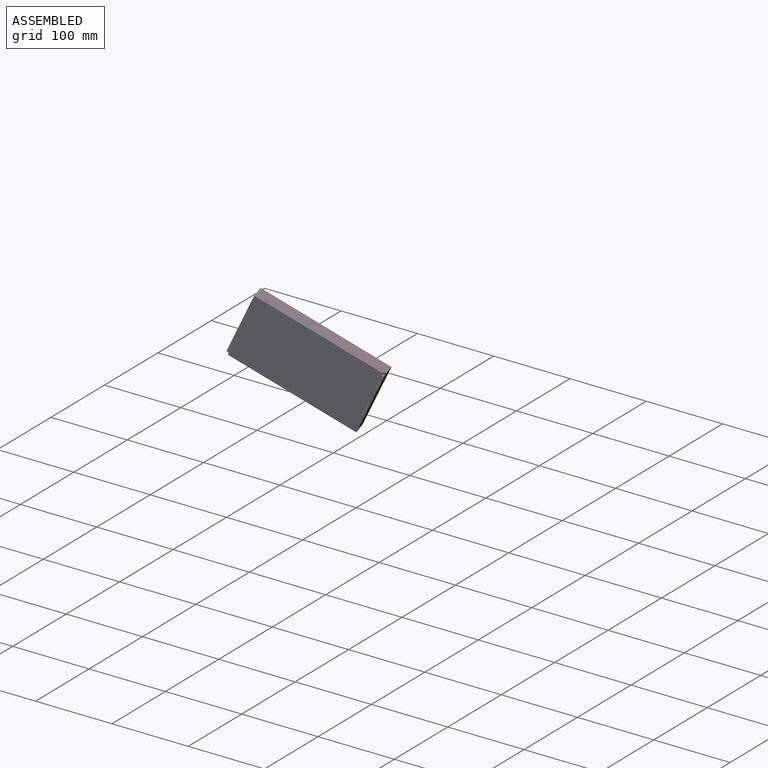
[diagram: assembled view]
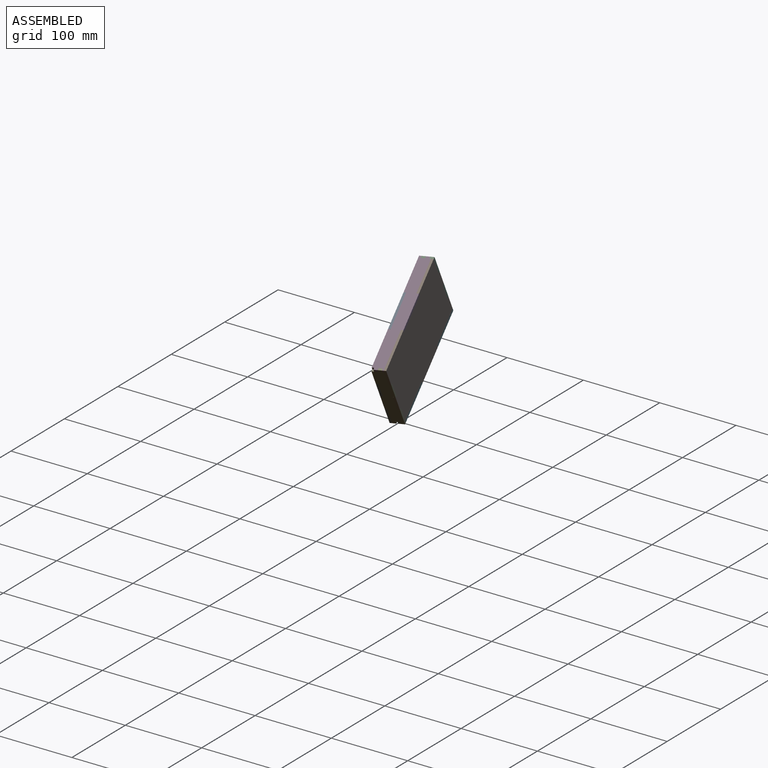
[diagram: assembled view, second angle]
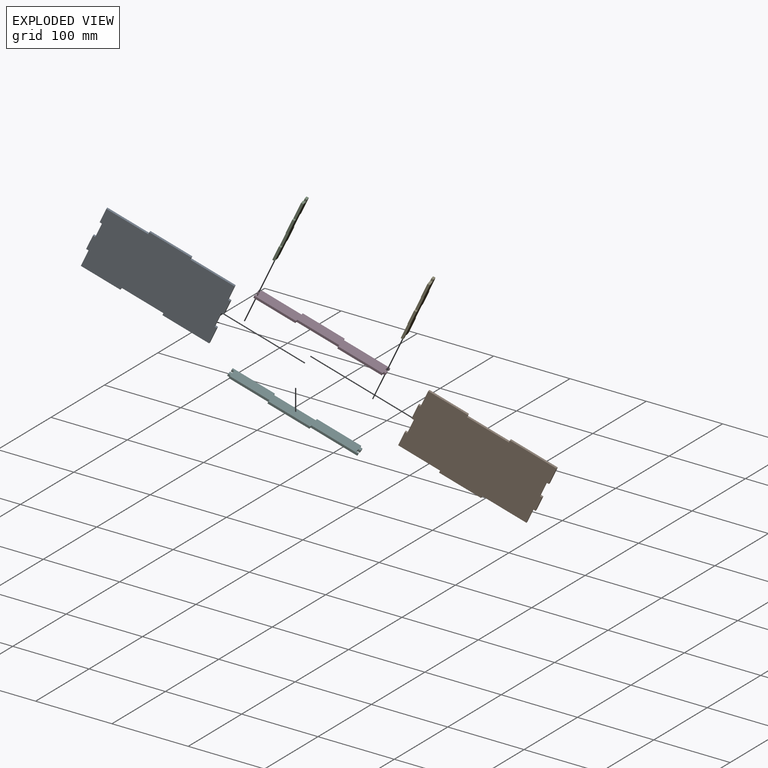
[diagram: exploded view]
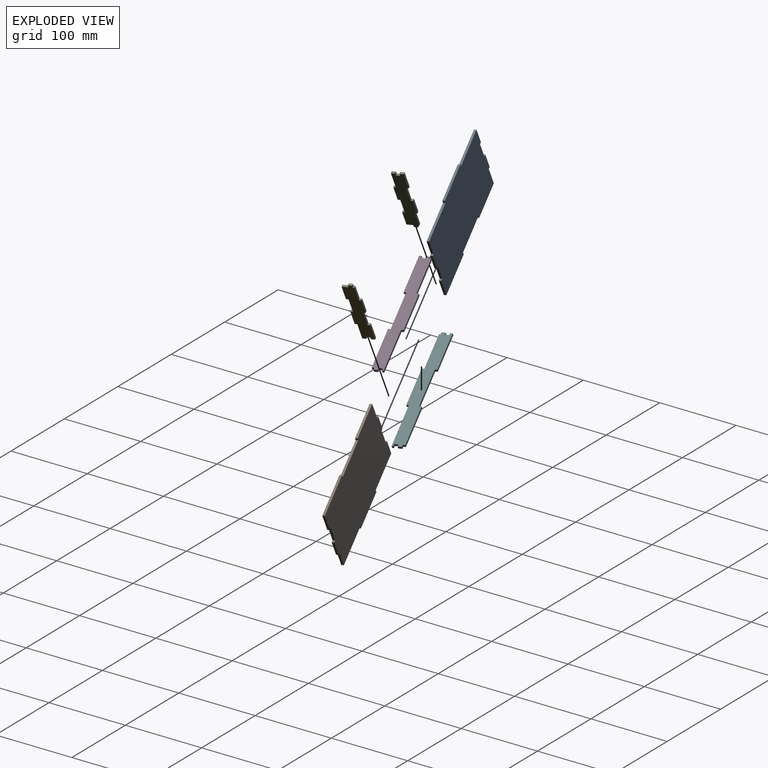
[diagram: exploded view, second angle]
ASSEMBLY  parts=6 mates=5
PART A: 26 faces, bbox 165x3x86 mm
  f0: plane 3x3mm, normal (0,0,1), area 9mm2, adj f1,f23,f24,f25
  f1: plane 20x3mm, normal (-1,0,0), area 60mm2, adj f0,f2,f24,f25
  f2: plane 53x3mm, normal (0,0,-1), area 159mm2, adj f1,f3,f24,f25
  f3: plane 3x3mm, normal (-1,0,0), area 9mm2, adj f2,f4,f24,f25
  f4: plane 53x3mm, normal (0,0,-1), area 159mm2, adj f3,f5,f24,f25
  f5: plane 3x3mm, normal (1,0,0), area 9mm2, adj f4,f6,f24,f25
  f6: plane 56x3mm, normal (0,0,-1), area 168mm2, adj f5,f7,f24,f25
  f7: plane 20x3mm, normal (1,0,0), area 60mm2, adj f6,f8,f24,f25
  f8: plane 3x3mm, normal (0,0,-1), area 9mm2, adj f7,f9,f24,f25
  f9: plane 20x3mm, normal (1,0,0), area 60mm2, adj f8,f10,f24,f25
  f10: plane 3x3mm, normal (0,0,1), area 9mm2, adj f9,f11,f24,f25
  f11: plane 20x3mm, normal (1,0,0), area 60mm2, adj f10,f12,f24,f25
  f12: plane 3x3mm, normal (0,0,-1), area 9mm2, adj f11,f13,f24,f25
  f13: plane 23x3mm, normal (1,0,0), area 69mm2, adj f12,f14,f24,f25
  f14: plane 59x3mm, normal (0,0,1), area 177mm2, adj f13,f15,f24,f25
  f15: plane 3x3mm, normal (-1,0,0), area 9mm2, adj f14,f16,f24,f25
  f16: plane 53x3mm, normal (0,0,1), area 159mm2, adj f15,f17,f24,f25
  f17: plane 3x3mm, normal (1,0,0), area 9mm2, adj f16,f18,f24,f25
  f18: plane 50x3mm, normal (0,0,1), area 150mm2, adj f17,f19,f24,f25
  f19: plane 23x3mm, normal (-1,0,0), area 69mm2, adj f18,f20,f24,f25
  f20: plane 3x3mm, normal (0,0,1), area 9mm2, adj f19,f21,f24,f25
  f21: plane 20x3mm, normal (-1,0,0), area 60mm2, adj f20,f22,f24,f25
  f22: plane 3x3mm, normal (0,0,-1), area 9mm2, adj f21,f23,f24,f25
  f23: plane 20x3mm, normal (-1,0,0), area 60mm2, adj f0,f22,f24,f25
  f24: plane 165x86mm, normal (0,-1,0), area 13446mm2, adj f0,f1,f2,f3,f4,f5,f6,f7
  f25: plane 165x86mm, normal (0,1,0), area 13446mm2, adj f0,f1,f2,f3,f4,f5,f6,f7
PART B: same geometry as A
PART C: 26 faces, bbox 3x18x86 mm
  f0: plane 5x3mm, normal (0,0,1), area 15mm2, adj f1,f23,f24,f25
  f1: plane 23x3mm, normal (0,1,0), area 69mm2, adj f0,f2,f24,f25
  f2: plane 3x3mm, normal (0,0,-1), area 9mm2, adj f1,f3,f24,f25
  f3: plane 20x3mm, normal (0,1,0), area 60mm2, adj f2,f4,f24,f25
  f4: plane 3x3mm, normal (0,0,1), area 9mm2, adj f3,f5,f24,f25
  f5: plane 20x3mm, normal (0,1,0), area 60mm2, adj f4,f6,f24,f25
  f6: plane 3x3mm, normal (0,0,-1), area 9mm2, adj f5,f7,f24,f25
  f7: plane 20x3mm, normal (0,1,0), area 60mm2, adj f6,f8,f24,f25
  f8: plane 3x2mm, normal (0,0,-1), area 6mm2, adj f7,f9,f24,f25
  f9: plane 3x3mm, normal (0,1,0), area 9mm2, adj f8,f10,f24,f25
  f10: plane 5x3mm, normal (0,0,-1), area 15mm2, adj f9,f11,f24,f25
  f11: plane 3x3mm, normal (0,-1,0), area 9mm2, adj f10,f12,f24,f25
  f12: plane 8x3mm, normal (0,0,-1), area 24mm2, adj f11,f13,f24,f25
  f13: plane 20x3mm, normal (0,-1,0), area 60mm2, adj f12,f14,f24,f25
  f14: plane 3x3mm, normal (0,0,1), area 9mm2, adj f13,f15,f24,f25
  f15: plane 20x3mm, normal (0,-1,0), area 60mm2, adj f14,f16,f24,f25
  f16: plane 3x3mm, normal (0,0,-1), area 9mm2, adj f15,f17,f24,f25
  f17: plane 20x3mm, normal (0,-1,0), area 60mm2, adj f16,f18,f24,f25
  f18: plane 3x3mm, normal (0,0,1), area 9mm2, adj f17,f19,f24,f25
  f19: plane 23x3mm, normal (0,-1,0), area 69mm2, adj f18,f20,f24,f25
  f20: plane 5x3mm, normal (0,0,1), area 15mm2, adj f19,f21,f24,f25
  f21: plane 3x3mm, normal (0,1,0), area 9mm2, adj f20,f22,f24,f25
  f22: plane 5x3mm, normal (0,0,1), area 15mm2, adj f21,f23,f24,f25
  f23: plane 3x3mm, normal (0,-1,0), area 9mm2, adj f0,f22,f24,f25
  f24: plane 86x18mm, normal (-1,0,0), area 1245mm2, adj f0,f1,f2,f3,f4,f5,f6,f7
  f25: plane 86x18mm, normal (1,0,0), area 1245mm2, adj f0,f1,f2,f3,f4,f5,f6,f7
PART D: 28 faces, bbox 165x18x3 mm
  f0: plane 50.03x3mm, normal (0,1,0), area 150.1mm2, adj f1,f25,f26,f27
  f1: plane 3x2mm, normal (-1,0,0), area 6mm2, adj f0,f2,f26,f27
  f2: plane 3x3mm, normal (0,1,0), area 9mm2, adj f1,f3,f26,f27
  f3: plane 5x3mm, normal (-1,0,0), area 15mm2, adj f2,f4,f26,f27
  f4: plane 3x3mm, normal (0,-1,0), area 9mm2, adj f3,f5,f26,f27
  f5: plane 5x3mm, normal (-1,0,0), area 15mm2, adj f4,f6,f26,f27
  f6: plane 3x2.96mm, normal (0,1,0), area 8.9mm2, adj f5,f7,f26,f27
  f7: plane 3x3mm, normal (-1,0,0), area 9mm2, adj f6,f8,f26,f27
  f8: plane 53x3mm, normal (0,-1,0), area 159mm2, adj f7,f9,f26,f27
  f9: plane 3x3mm, normal (1,0,0), area 9mm2, adj f8,f10,f26,f27
  f10: plane 3x3mm, normal (0,-1,0), area 9mm2, adj f9,f11,f26,f27
  f11: plane 50x3mm, normal (0,-1,0), area 150mm2, adj f10,f12,f26,f27
  f12: plane 3x3mm, normal (-1,0,0), area 9mm2, adj f11,f13,f26,f27
  f13: plane 56x3mm, normal (0,-1,0), area 168mm2, adj f12,f14,f26,f27
  f14: plane 3x3mm, normal (1,0,0), area 9mm2, adj f13,f15,f26,f27
  f15: plane 3x2.96mm, normal (0,-1,0), area 8.9mm2, adj f14,f16,f26,f27
  f16: plane 5x3mm, normal (1,0,0), area 15mm2, adj f15,f17,f26,f27
  f17: plane 3x3mm, normal (0,1,0), area 9mm2, adj f16,f18,f26,f27
  f18: plane 5x3mm, normal (1,0,0), area 15mm2, adj f17,f19,f26,f27
  f19: plane 3x3mm, normal (0,-1,0), area 9mm2, adj f18,f20,f26,f27
  f20: plane 3x2mm, normal (1,-0.02,0), area 6mm2, adj f19,f21,f26,f27
  f21: plane 3x3mm, normal (0,1,0), area 9mm2, adj f20,f22,f26,f27
  f22: plane 56x3mm, normal (0,1,0), area 168mm2, adj f21,f23,f26,f27
  f23: plane 3x3mm, normal (1,0,0), area 9mm2, adj f22,f24,f26,f27
  f24: plane 53x3mm, normal (0,1,0), area 159mm2, adj f23,f25,f26,f27
  f25: plane 3x3mm, normal (-1,0,0), area 9mm2, adj f0,f24,f26,f27
  f26: plane 165.04x18mm, normal (0,0,1), area 2430mm2, adj f0,f1,f2,f3,f4,f5,f6,f7
  f27: plane 165.04x18mm, normal (0,0,-1), area 2430mm2, adj f0,f1,f2,f3,f4,f5,f6,f7
PART E: same geometry as C
PART F: same geometry as D
PLACE A rot(axis=(-0.97,-0.11,0.22),177.8deg) t=(27.71,-35.01,-47)mm
PLACE B rot(axis=(0.08,0.88,0.46),28.8deg) t=(23.89,-17.49,-45.45)mm
PLACE C rot(axis=(0.08,0.88,0.46),28.8deg) t=(23.85,-17.5,-45.43)mm
PLACE D rot(axis=(0.08,0.88,0.46),28.8deg) t=(23.89,-17.49,-45.45)mm
PLACE E rot(axis=(0.12,-0.99,-0.02),154.6deg) t=(23.85,-17.5,-45.43)mm
PLACE F rot(axis=(-0.97,-0.11,0.22),177.8deg) t=(27.71,-35.01,-47)mm
MATE fastened B.f17 <-> D.f25  axis (0.88,0.23,-0.42) through (16.17,-25.19,4.31)mm
MATE fastened C.f16 <-> A.f22  axis (-0.43,-0.01,-0.9) through (-43.66,-52.25,-12.77)mm
MATE fastened A.f15 <-> F.f23  axis (-0.88,-0.23,0.42) through (30.17,-28.69,-94.23)mm
MATE fastened A.f10 <-> E.f16  axis (-0.43,-0.01,-0.9) through (98.44,-14.85,-80.97)mm
MATE fastened D.f17 <-> E.f11  axis (-0.21,0.97,0.09) through (114.88,-7.96,-42.93)mm
